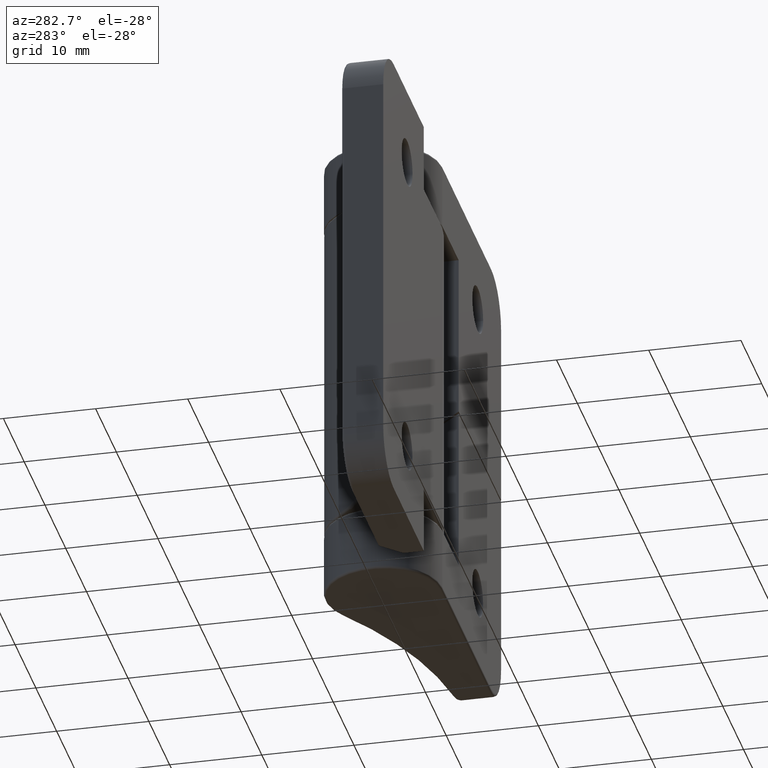
[diagram: clean part render]
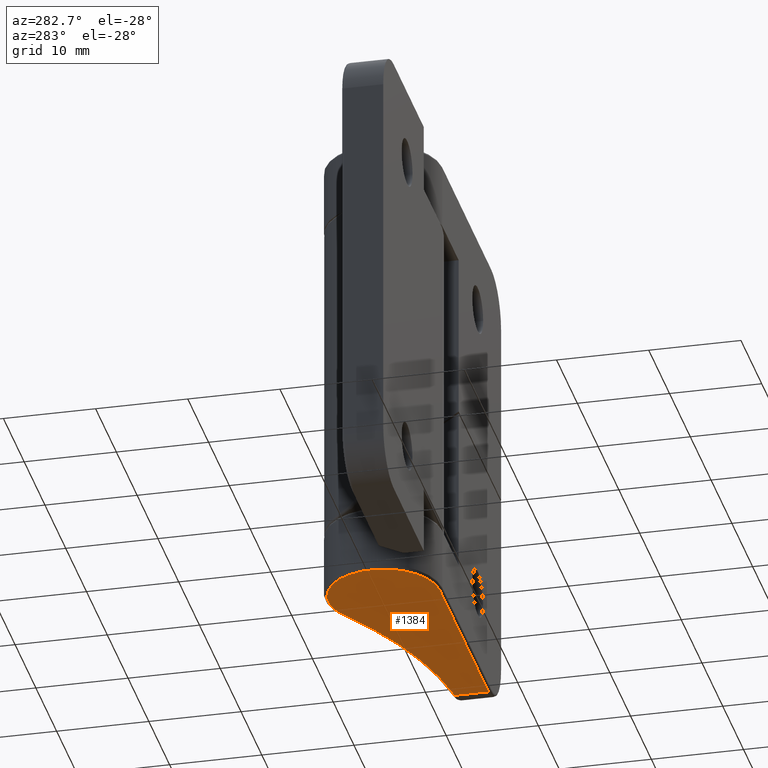
[diagram: same view with one face highlighted and labeled with its STEP entity id]
A machine part, auxiliary view. The second image highlights one B-rep face of the part: STEP entity #1384.
In plain terms, the highlighted planar face has unit normal (0, 0, -1).
Its self-contained STEP definition (entity closure, byte-faithful):
#85=PLANE('',#1559);
#174=LINE('',#2437,#269);
#192=LINE('',#2598,#287);
#269=VECTOR('',#1903,23.5);
#287=VECTOR('',#1989,3.6787586666537);
#410=FACE_OUTER_BOUND('',#506,.T.);
#506=EDGE_LOOP('',(#1275,#1276,#1277,#1278));
#579=CIRCLE('',#1528,6.05);
#582=CIRCLE('',#1532,44.9810344827586);
#690=VERTEX_POINT('',#2429);
#692=VERTEX_POINT('',#2435);
#694=VERTEX_POINT('',#2441);
#696=VERTEX_POINT('',#2447);
#867=EDGE_CURVE('',#692,#690,#174,.T.);
#870=EDGE_CURVE('',#694,#692,#579,.T.);
#873=EDGE_CURVE('',#696,#694,#582,.T.);
#909=EDGE_CURVE('',#690,#696,#192,.T.);
#1275=ORIENTED_EDGE('',*,*,#873,.F.);
#1276=ORIENTED_EDGE('',*,*,#909,.F.);
#1277=ORIENTED_EDGE('',*,*,#867,.F.);
#1278=ORIENTED_EDGE('',*,*,#870,.F.);
#1384=ADVANCED_FACE('',(#410),#85,.T.);
#1528=AXIS2_PLACEMENT_3D('',#2443,#1909,#1910);
#1532=AXIS2_PLACEMENT_3D('',#2449,#1917,#1918);
#1559=AXIS2_PLACEMENT_3D('',#2597,#1987,#1988);
#1903=DIRECTION('',(-1.,-4.67462326157961E-16,0.));
#1909=DIRECTION('center_axis',(0.,0.,-1.));
#1910=DIRECTION('ref_axis',(0.956429691039697,0.291962747791066,0.));
#1917=DIRECTION('center_axis',(0.,0.,1.));
#1918=DIRECTION('ref_axis',(0.345102460076217,-0.938565017486451,0.));
#1987=DIRECTION('center_axis',(0.,0.,1.));
#1988=DIRECTION('ref_axis',(1.,0.,0.));
#1989=DIRECTION('',(0.,1.,0.));
#2429=CARTESIAN_POINT('',(-23.5,-6.05000000000001,25.4));
#2435=CARTESIAN_POINT('',(2.22044604925031E-15,-6.05,25.4));
#2437=CARTESIAN_POINT('',(-19.7778483025644,-6.05000000000001,25.4));
#2441=CARTESIAN_POINT('',(-3.37882627204541,5.01856882221772,25.4));
#2443=CARTESIAN_POINT('Origin',(0.,0.,25.4));
#2447=CARTESIAN_POINT('',(-23.5,-2.37124133334631,25.4));
#2449=CARTESIAN_POINT('Origin',(-28.5,42.3310344827586,25.4));
#2597=CARTESIAN_POINT('Origin',(-11.0556966051288,-2.52537349151556,25.4));
#2598=CARTESIAN_POINT('',(-23.5,-2.43768674575779,25.4));